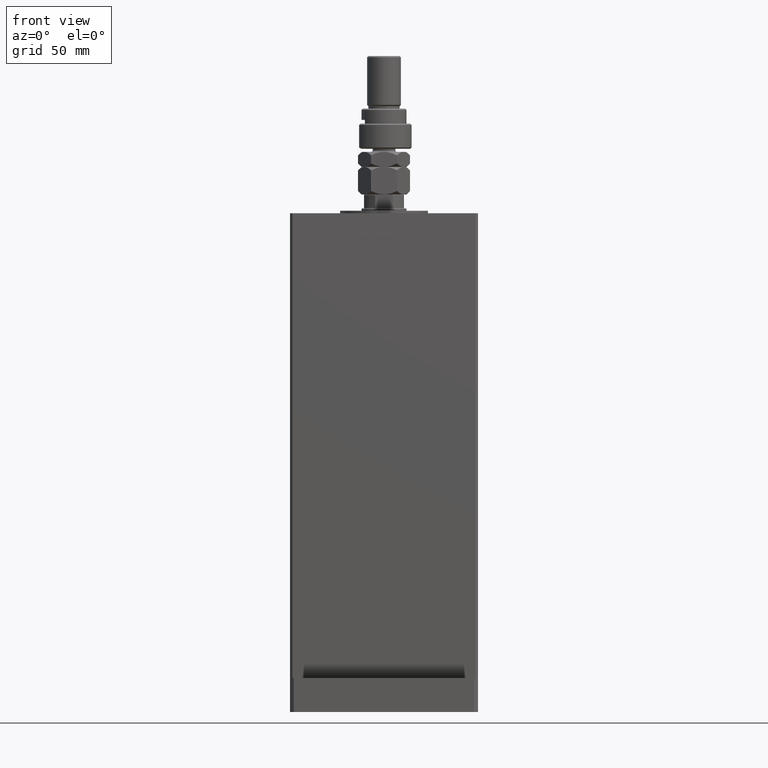
[diagram: clean part render]
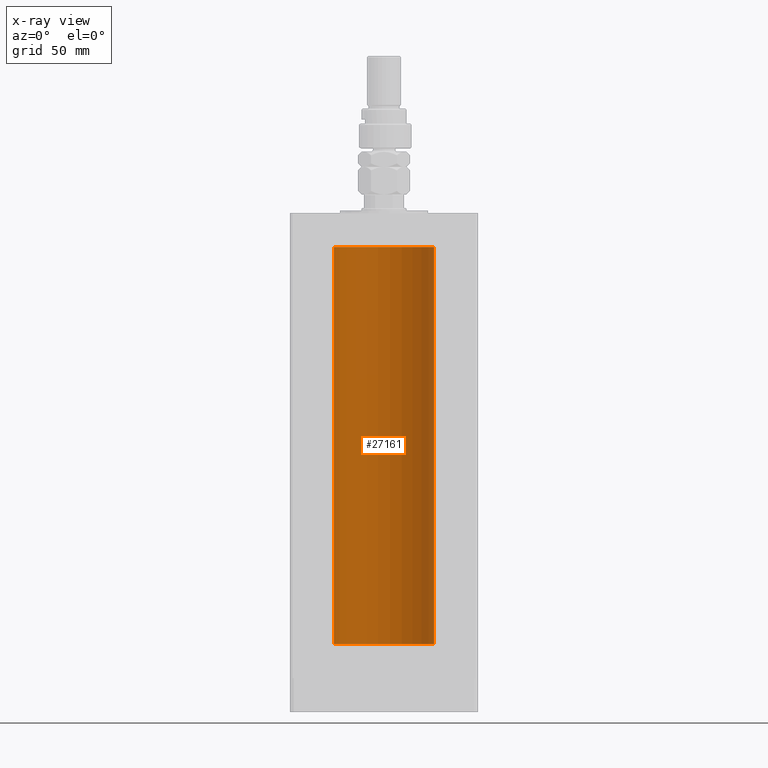
[diagram: x-ray — body ghosted, one internal face saturated and labeled with its STEP entity id]
A machine part, front view, then the same camera in x-ray: the body is ghosted and one INTERNAL B-rep face — a face not visible from any outside direction — is saturated and labeled: STEP entity #27161.
In plain terms, the highlighted cylindrical surface (partial cylindrical patch) has radius 40 mm, axis along (-0, -0, -1).
Its self-contained STEP definition (entity closure, byte-faithful):
#301 = CARTESIAN_POINT ( 'NONE',  ( 0.000000000000000000, 0.000000000000000000, 0.000000000000000000 ) ) ;
#1185 = LINE ( 'NONE', #10057, #49039 ) ;
#1304 = CARTESIAN_POINT ( 'NONE',  ( -40.00000000000000000, 0.000000000000000000, 317.0000000000000000 ) ) ;
#2211 = AXIS2_PLACEMENT_3D ( 'NONE', #3508, #20120, #46163 ) ;
#3508 = CARTESIAN_POINT ( 'NONE',  ( 0.000000000000000000, 0.000000000000000000, 317.0000000000000000 ) ) ;
#5397 = AXIS2_PLACEMENT_3D ( 'NONE', #301, #17752, #13464 ) ;
#9087 = CARTESIAN_POINT ( 'NONE',  ( 40.00000000000000000, 4.898587196589413026E-15, 317.0000000000000000 ) ) ;
#10057 = CARTESIAN_POINT ( 'NONE',  ( 40.00000000000000000, 4.898587196589413026E-15, 317.0000000000000000 ) ) ;
#10724 = VECTOR ( 'NONE', #35094, 1000.000000000000000 ) ;
#11822 = CIRCLE ( 'NONE', #5397, 40.00000000000000000 ) ;
#11904 = VERTEX_POINT ( 'NONE', #12229 ) ;
#12229 = CARTESIAN_POINT ( 'NONE',  ( -40.00000000000000000, 0.000000000000000000, 317.0000000000000000 ) ) ;
#12899 = ORIENTED_EDGE ( 'NONE', *, *, #40372, .F. ) ;
#13464 = DIRECTION ( 'NONE',  ( 1.000000000000000000, 0.000000000000000000, 0.000000000000000000 ) ) ;
#14414 = CARTESIAN_POINT ( 'NONE',  ( 0.000000000000000000, 0.000000000000000000, 317.0000000000000000 ) ) ;
#16137 = AXIS2_PLACEMENT_3D ( 'NONE', #14414, #44183, #52773 ) ;
#16571 = ORIENTED_EDGE ( 'NONE', *, *, #32711, .T. ) ;
#17752 = DIRECTION ( 'NONE',  ( -0.000000000000000000, 0.000000000000000000, 1.000000000000000000 ) ) ;
#18927 = DIRECTION ( 'NONE',  ( -0.000000000000000000, -0.000000000000000000, -1.000000000000000000 ) ) ;
#20120 = DIRECTION ( 'NONE',  ( -0.000000000000000000, -0.000000000000000000, -1.000000000000000000 ) ) ;
#20684 = FACE_OUTER_BOUND ( 'NONE', #38450, .T. ) ;
#21453 = VERTEX_POINT ( 'NONE', #9087 ) ;
#22470 = ORIENTED_EDGE ( 'NONE', *, *, #47199, .F. ) ;
#27161 = ADVANCED_FACE ( 'NONE', ( #20684 ), #51292, .F. ) ;
#28950 = CIRCLE ( 'NONE', #16137, 40.00000000000000000 ) ;
#32711 = EDGE_CURVE ( 'NONE', #21453, #11904, #28950, .T. ) ;
#32728 = ORIENTED_EDGE ( 'NONE', *, *, #42935, .T. ) ;
#35094 = DIRECTION ( 'NONE',  ( -0.000000000000000000, -0.000000000000000000, -1.000000000000000000 ) ) ;
#36156 = VERTEX_POINT ( 'NONE', #49224 ) ;
#36409 = VERTEX_POINT ( 'NONE', #44872 ) ;
#38450 = EDGE_LOOP ( 'NONE', ( #12899, #16571, #32728, #22470 ) ) ;
#40372 = EDGE_CURVE ( 'NONE', #21453, #36156, #1185, .T. ) ;
#42935 = EDGE_CURVE ( 'NONE', #11904, #36409, #43396, .T. ) ;
#43396 = LINE ( 'NONE', #1304, #10724 ) ;
#44183 = DIRECTION ( 'NONE',  ( -0.000000000000000000, 0.000000000000000000, 1.000000000000000000 ) ) ;
#44872 = CARTESIAN_POINT ( 'NONE',  ( -40.00000000000000000, 0.000000000000000000, 0.000000000000000000 ) ) ;
#46163 = DIRECTION ( 'NONE',  ( -1.000000000000000000, 0.000000000000000000, 0.000000000000000000 ) ) ;
#47199 = EDGE_CURVE ( 'NONE', #36156, #36409, #11822, .T. ) ;
#49039 = VECTOR ( 'NONE', #18927, 1000.000000000000000 ) ;
#49224 = CARTESIAN_POINT ( 'NONE',  ( 40.00000000000000000, 4.898587196589413026E-15, 0.000000000000000000 ) ) ;
#51292 = CYLINDRICAL_SURFACE ( 'NONE', #2211, 40.00000000000000000 ) ;
#52773 = DIRECTION ( 'NONE',  ( 1.000000000000000000, 0.000000000000000000, 0.000000000000000000 ) ) ;